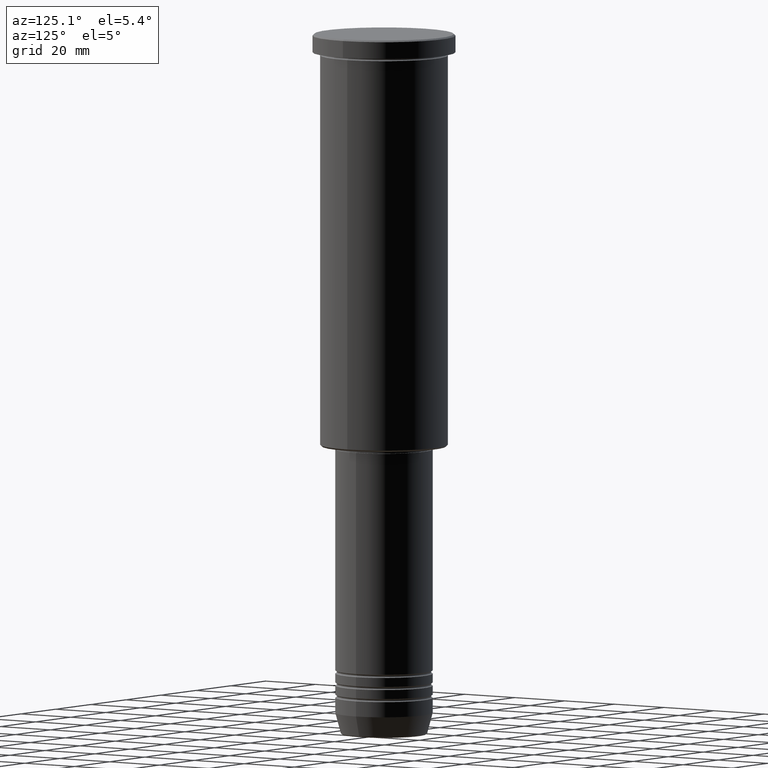
[diagram: clean part render]
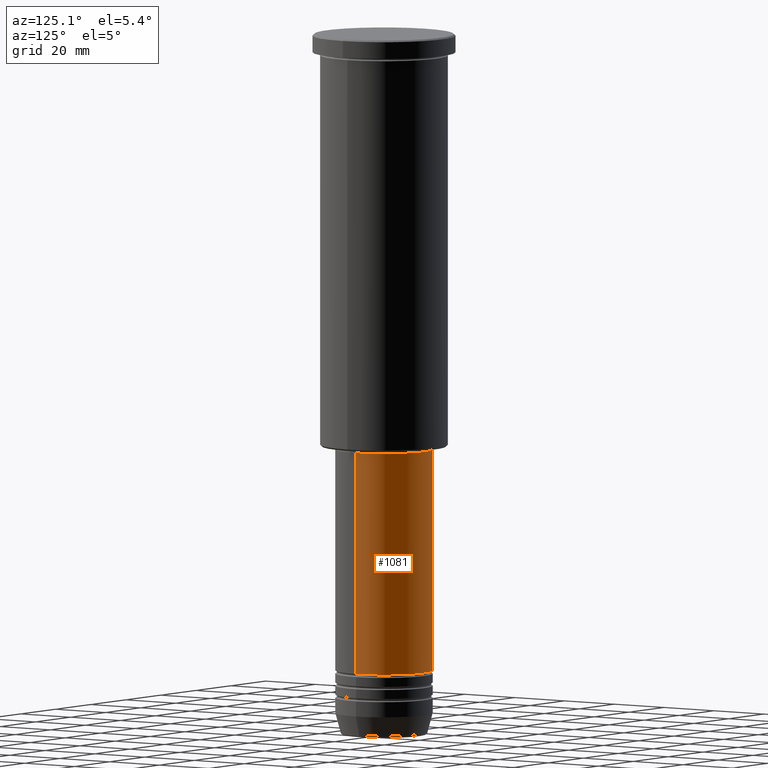
[diagram: same view with one face highlighted and labeled with its STEP entity id]
A machine part, auxiliary view. The second image highlights one B-rep face of the part: STEP entity #1081.
In plain terms, the highlighted cylindrical surface (partial cylindrical patch) has radius 16 mm, axis along (-0, -0, 1).
Its self-contained STEP definition (entity closure, byte-faithful):
#3 = CARTESIAN_POINT ( 'NONE',  ( 16.00000000000000000, 0.000000000000000000, 0.000000000000000000 ) ) ;
#21 = LINE ( 'NONE', #3, #980 ) ;
#27 = CIRCLE ( 'NONE', #691, 16.00000000000000000 ) ;
#29 = DIRECTION ( 'NONE',  ( 1.000000000000000000, 0.000000000000000000, 0.000000000000000000 ) ) ;
#35 = CARTESIAN_POINT ( 'NONE',  ( 0.000000000000000000, 0.000000000000000000, -209.9999999999999432 ) ) ;
#53 = ORIENTED_EDGE ( 'NONE', *, *, #424, .F. ) ;
#58 = DIRECTION ( 'NONE',  ( -0.000000000000000000, -0.000000000000000000, 1.000000000000000000 ) ) ;
#68 = ORIENTED_EDGE ( 'NONE', *, *, #779, .F. ) ;
#123 = EDGE_LOOP ( 'NONE', ( #784, #994, #53, #68 ) ) ;
#220 = CARTESIAN_POINT ( 'NONE',  ( 0.000000000000000000, 0.000000000000000000, -137.0000000000000284 ) ) ;
#305 = DIRECTION ( 'NONE',  ( 1.000000000000000000, 0.000000000000000000, 0.000000000000000000 ) ) ;
#391 = EDGE_CURVE ( 'NONE', #563, #1143, #27, .T. ) ;
#424 = EDGE_CURVE ( 'NONE', #725, #796, #998, .T. ) ;
#438 = CARTESIAN_POINT ( 'NONE',  ( 0.000000000000000000, 0.000000000000000000, 0.000000000000000000 ) ) ;
#474 = AXIS2_PLACEMENT_3D ( 'NONE', #438, #58, #824 ) ;
#529 = FACE_OUTER_BOUND ( 'NONE', #123, .T. ) ;
#538 = CARTESIAN_POINT ( 'NONE',  ( 16.00000000000000000, 0.000000000000000000, -209.9999999999999432 ) ) ;
#563 = VERTEX_POINT ( 'NONE', #538 ) ;
#577 = DIRECTION ( 'NONE',  ( -0.000000000000000000, -0.000000000000000000, 1.000000000000000000 ) ) ;
#628 = CYLINDRICAL_SURFACE ( 'NONE', #474, 16.00000000000000000 ) ;
#660 = CARTESIAN_POINT ( 'NONE',  ( 16.00000000000000355, 0.000000000000000000, -137.0000000000000284 ) ) ;
#666 = CARTESIAN_POINT ( 'NONE',  ( -16.00000000000000355, 1.959434878635765526E-15, -137.0000000000000284 ) ) ;
#681 = DIRECTION ( 'NONE',  ( -0.000000000000000000, -0.000000000000000000, 1.000000000000000000 ) ) ;
#691 = AXIS2_PLACEMENT_3D ( 'NONE', #35, #681, #29 ) ;
#713 = CARTESIAN_POINT ( 'NONE',  ( -16.00000000000000000, 1.959434878635765131E-15, -209.9999999999999432 ) ) ;
#725 = VERTEX_POINT ( 'NONE', #660 ) ;
#756 = AXIS2_PLACEMENT_3D ( 'NONE', #220, #577, #305 ) ;
#779 = EDGE_CURVE ( 'NONE', #563, #725, #21, .T. ) ;
#784 = ORIENTED_EDGE ( 'NONE', *, *, #391, .T. ) ;
#796 = VERTEX_POINT ( 'NONE', #666 ) ;
#819 = DIRECTION ( 'NONE',  ( -0.000000000000000000, -0.000000000000000000, 1.000000000000000000 ) ) ;
#824 = DIRECTION ( 'NONE',  ( 1.000000000000000000, 0.000000000000000000, 0.000000000000000000 ) ) ;
#917 = DIRECTION ( 'NONE',  ( -0.000000000000000000, -0.000000000000000000, 1.000000000000000000 ) ) ;
#980 = VECTOR ( 'NONE', #917, 1000.000000000000000 ) ;
#994 = ORIENTED_EDGE ( 'NONE', *, *, #1127, .T. ) ;
#998 = CIRCLE ( 'NONE', #756, 16.00000000000000355 ) ;
#1022 = VECTOR ( 'NONE', #819, 1000.000000000000000 ) ;
#1081 = ADVANCED_FACE ( 'NONE', ( #529 ), #628, .T. ) ;
#1127 = EDGE_CURVE ( 'NONE', #1143, #796, #1181, .T. ) ;
#1143 = VERTEX_POINT ( 'NONE', #713 ) ;
#1165 = CARTESIAN_POINT ( 'NONE',  ( -16.00000000000000000, 1.959434878635765131E-15, 0.000000000000000000 ) ) ;
#1181 = LINE ( 'NONE', #1165, #1022 ) ;